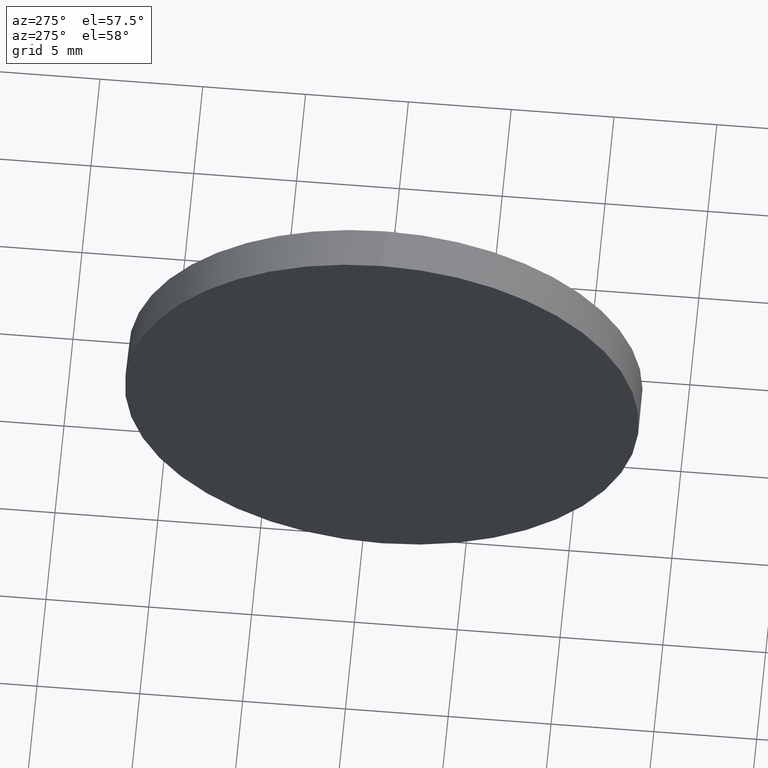
[diagram: clean part render]
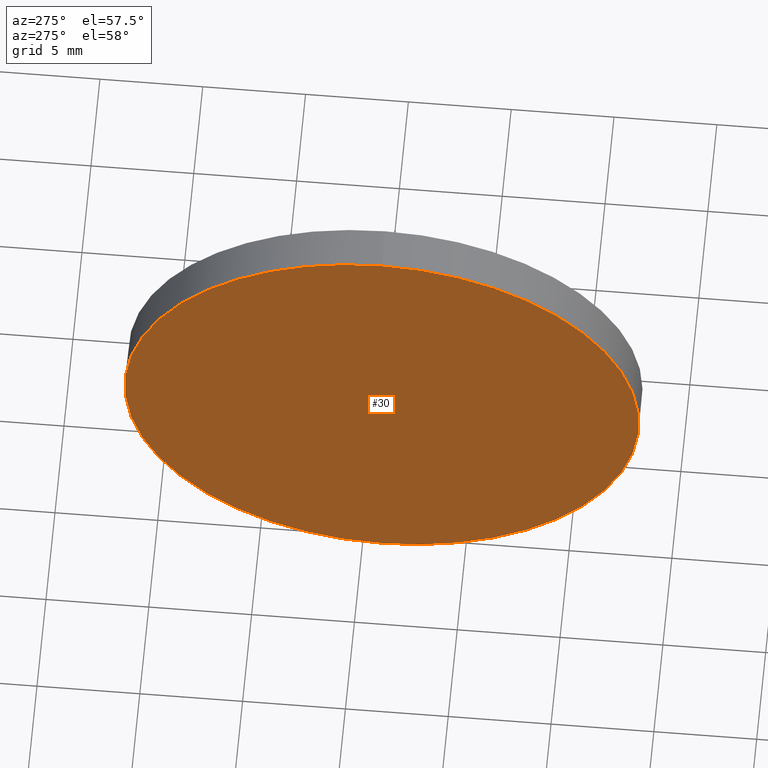
[diagram: same view with one face highlighted and labeled with its STEP entity id]
A machine part, auxiliary view. The second image highlights one B-rep face of the part: STEP entity #30.
In plain terms, the highlighted planar face has unit normal (1, 0, 0).
Its self-contained STEP definition (entity closure, byte-faithful):
#14 = CARTESIAN_POINT ( 'NONE',  ( 379.2946754497420400, 209.0413966464078600, 0.0000000000000000000 ) ) ;
#23 = AXIS2_PLACEMENT_3D ( 'NONE', #31, #90, #139 ) ;
#30 = ADVANCED_FACE ( 'NONE', ( #142 ), #147, .F. ) ;
#31 = CARTESIAN_POINT ( 'NONE',  ( 379.2946754497420400, 209.0413966464078600, 0.0000000000000000000 ) ) ;
#41 = CIRCLE ( 'NONE', #23, 12.50000000000001100 ) ;
#46 = DIRECTION ( 'NONE',  ( -1.000000000000000000, -0.0000000000000000000, -0.0000000000000000000 ) ) ;
#48 = AXIS2_PLACEMENT_3D ( 'NONE', #175, #114, #113 ) ;
#78 = EDGE_CURVE ( 'NONE', #109, #127, #101, .T. ) ;
#90 = DIRECTION ( 'NONE',  ( -1.000000000000000000, -0.0000000000000000000, -0.0000000000000000000 ) ) ;
#101 = CIRCLE ( 'NONE', #186, 12.50000000000001100 ) ;
#109 = VERTEX_POINT ( 'NONE', #121 ) ;
#113 = DIRECTION ( 'NONE',  ( 0.0000000000000000000, 0.0000000000000000000, -1.000000000000000000 ) ) ;
#114 = DIRECTION ( 'NONE',  ( 1.000000000000000000, 0.0000000000000000000, 0.0000000000000000000 ) ) ;
#119 = EDGE_CURVE ( 'NONE', #127, #109, #41, .T. ) ;
#121 = CARTESIAN_POINT ( 'NONE',  ( 379.2946754497420400, 209.0413966464078600, 12.50000000000001100 ) ) ;
#127 = VERTEX_POINT ( 'NONE', #163 ) ;
#128 = EDGE_LOOP ( 'NONE', ( #169, #168 ) ) ;
#139 = DIRECTION ( 'NONE',  ( 0.0000000000000000000, 0.0000000000000000000, 1.000000000000000000 ) ) ;
#142 = FACE_OUTER_BOUND ( 'NONE', #128, .T. ) ;
#146 = DIRECTION ( 'NONE',  ( 0.0000000000000000000, 0.0000000000000000000, 1.000000000000000000 ) ) ;
#147 = PLANE ( 'NONE',  #48 ) ;
#163 = CARTESIAN_POINT ( 'NONE',  ( 379.2946754497420400, 209.0413966464078600, -12.50000000000001100 ) ) ;
#168 = ORIENTED_EDGE ( 'NONE', *, *, #119, .T. ) ;
#169 = ORIENTED_EDGE ( 'NONE', *, *, #78, .T. ) ;
#175 = CARTESIAN_POINT ( 'NONE',  ( 379.2946754497420400, 209.0413966464078600, 0.0000000000000000000 ) ) ;
#186 = AXIS2_PLACEMENT_3D ( 'NONE', #14, #46, #146 ) ;